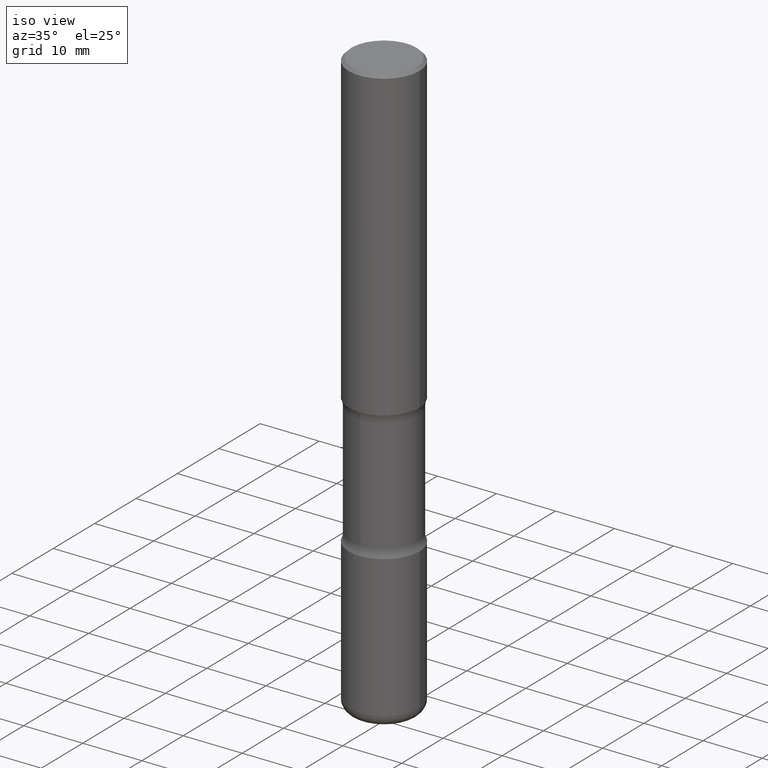
[diagram: clean part render]
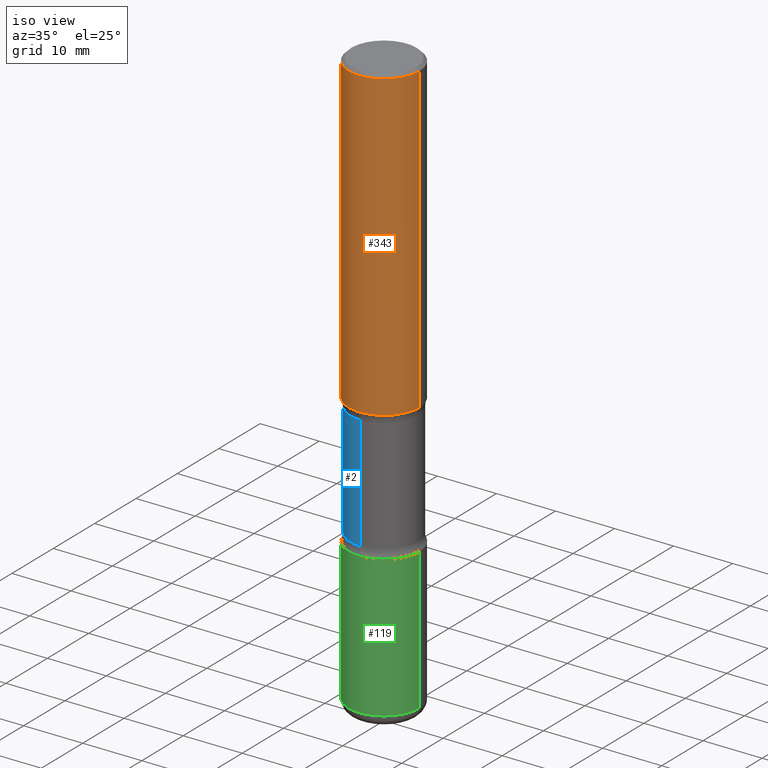
[diagram: same view with three faces highlighted in distinct colors, each labeled with its STEP entity id]
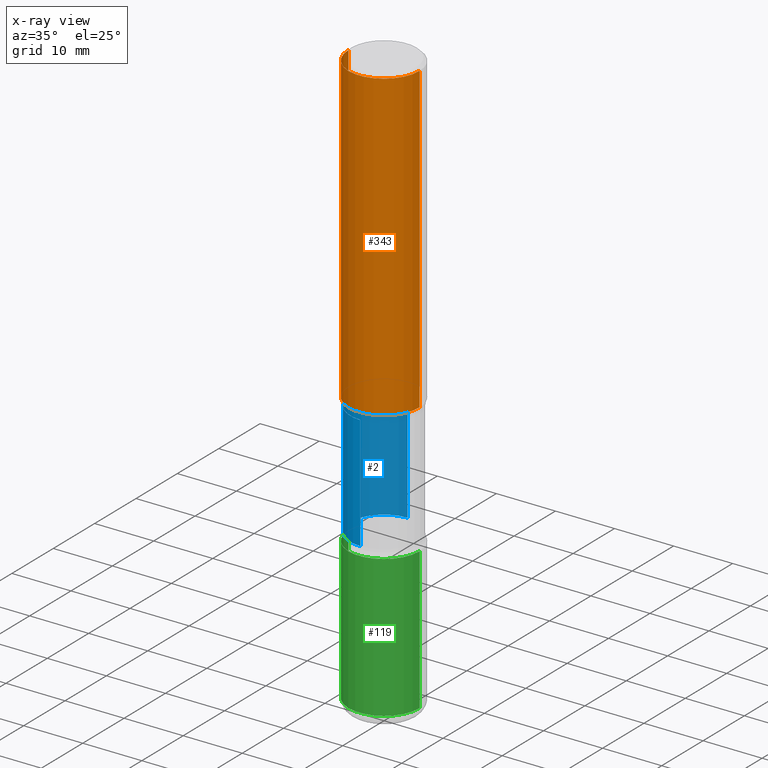
[diagram: x-ray of the same camera — body ghosted, the three highlighted faces saturated]
A machine part, iso view with three faces highlighted in distinct colors.
The next image is the same camera in x-ray (body ghosted, the three faces saturated) — at least one of them is partly hidden behind the body in this view.
Their STEP definitions:

[orange] entity #343 — the highlighted cylindrical surface (partial cylindrical patch) has radius 5.9995 mm, axis along (-0, 0, 1).
#23 = DIRECTION ( 'NONE',  ( 1.000000000000000000, -6.982962677686266711E-15, 4.876176775795936353E-29 ) ) ;
#48 = CARTESIAN_POINT ( 'NONE',  ( -0.2362000000000001598, -1.930493169962915017E-15, -2.047200000000000131 ) ) ;
#61 = EDGE_LOOP ( 'NONE', ( #238, #226, #90, #188 ) ) ;
#87 = CARTESIAN_POINT ( 'NONE',  ( -0.2361999999999999933, 1.678301941865356591E-15, -1.161852468318208757E-29 ) ) ;
#90 = ORIENTED_EDGE ( 'NONE', *, *, #451, .T. ) ;
#92 = EDGE_CURVE ( 'NONE', #491, #437, #287, .T. ) ;
#103 = EDGE_CURVE ( 'NONE', #491, #412, #474, .T. ) ;
#118 = CARTESIAN_POINT ( 'NONE',  ( -0.2361999999999998823, 1.579546157692632438E-15, -0.02000000000000006981 ) ) ;
#121 = CYLINDRICAL_SURFACE ( 'NONE', #436, 0.2361999999999999933 ) ;
#157 = CARTESIAN_POINT ( 'NONE',  ( 0.000000000000000000, 0.000000000000000000, 0.000000000000000000 ) ) ;
#188 = ORIENTED_EDGE ( 'NONE', *, *, #446, .F. ) ;
#202 = DIRECTION ( 'NONE',  ( -2.445468806185136597E-29, 3.491481338843145583E-15, 1.000000000000000000 ) ) ;
#206 = VECTOR ( 'NONE', #476, 39.37007874015748143 ) ;
#226 = ORIENTED_EDGE ( 'NONE', *, *, #92, .T. ) ;
#230 = DIRECTION ( 'NONE',  ( 1.000000000000000000, -6.982962677686267499E-15, 0.000000000000000000 ) ) ;
#232 = DIRECTION ( 'NONE',  ( -2.445468806185136597E-29, 3.491481338843145583E-15, 1.000000000000000000 ) ) ;
#238 = ORIENTED_EDGE ( 'NONE', *, *, #103, .F. ) ;
#277 = VECTOR ( 'NONE', #363, 39.37007874015748143 ) ;
#287 = CIRCLE ( 'NONE', #556, 0.2362000000000001321 ) ;
#292 = DIRECTION ( 'NONE',  ( 1.000000000000000000, -6.982962677686269077E-15, 0.000000000000000000 ) ) ;
#305 = CIRCLE ( 'NONE', #532, 0.2361999999999998823 ) ;
#341 = CARTESIAN_POINT ( 'NONE',  ( 5.006363740022212241E-29, -7.147760596879688202E-15, -2.047200000000000131 ) ) ;
#343 = ADVANCED_FACE ( 'NONE', ( #417 ), #121, .T. ) ;
#363 = DIRECTION ( 'NONE',  ( -2.445468806185136877E-29, 3.491481338843145188E-15, 1.000000000000000000 ) ) ;
#366 = CARTESIAN_POINT ( 'NONE',  ( 0.2361999999999999933, -1.649375784469496131E-15, 1.151752954443000088E-29 ) ) ;
#371 = VERTEX_POINT ( 'NONE', #392 ) ;
#392 = CARTESIAN_POINT ( 'NONE',  ( 0.2361999999999998823, -1.690279253850498179E-15, -0.02000000000000006981 ) ) ;
#412 = VERTEX_POINT ( 'NONE', #118 ) ;
#417 = FACE_OUTER_BOUND ( 'NONE', #61, .T. ) ;
#419 = CARTESIAN_POINT ( 'NONE',  ( 0.2362000000000001321, -8.797136381349186305E-15, -2.047200000000000131 ) ) ;
#422 = CARTESIAN_POINT ( 'NONE',  ( 4.890937612370289799E-31, -6.982962677686315028E-17, -0.02000000000000006981 ) ) ;
#425 = DIRECTION ( 'NONE',  ( -2.445468806185136597E-29, 3.491481338843145583E-15, 1.000000000000000000 ) ) ;
#436 = AXIS2_PLACEMENT_3D ( 'NONE', #157, #202, #23 ) ;
#437 = VERTEX_POINT ( 'NONE', #419 ) ;
#446 = EDGE_CURVE ( 'NONE', #412, #371, #305, .T. ) ;
#451 = EDGE_CURVE ( 'NONE', #437, #371, #490, .T. ) ;
#474 = LINE ( 'NONE', #87, #206 ) ;
#476 = DIRECTION ( 'NONE',  ( -2.445468806185136877E-29, 3.491481338843145188E-15, 1.000000000000000000 ) ) ;
#490 = LINE ( 'NONE', #366, #277 ) ;
#491 = VERTEX_POINT ( 'NONE', #48 ) ;
#532 = AXIS2_PLACEMENT_3D ( 'NONE', #422, #232, #230 ) ;
#556 = AXIS2_PLACEMENT_3D ( 'NONE', #341, #425, #292 ) ;

[blue] entity #2 — the highlighted cylindrical surface (partial cylindrical patch) has radius 5.6998 mm, axis along (0, -0, -1).
#2 = ADVANCED_FACE ( 'NONE', ( #123 ), #250, .T. ) ;
#4 = DIRECTION ( 'NONE',  ( 6.982962677686265922E-15, 1.000000000000000000, -3.652203200085913934E-15 ) ) ;
#18 = ORIENTED_EDGE ( 'NONE', *, *, #261, .T. ) ;
#25 = DIRECTION ( 'NONE',  ( 2.525985086076564115E-29, -3.376177443336566513E-15, -1.000000000000000000 ) ) ;
#47 = EDGE_LOOP ( 'NONE', ( #359, #18, #256, #456 ) ) ;
#60 = DIRECTION ( 'NONE',  ( 2.525985086076564115E-29, -3.376177443336566513E-15, -1.000000000000000000 ) ) ;
#65 = CIRCLE ( 'NONE', #134, 0.2243999999999999606 ) ;
#75 = EDGE_CURVE ( 'NONE', #322, #358, #553, .T. ) ;
#102 = LINE ( 'NONE', #449, #403 ) ;
#123 = FACE_OUTER_BOUND ( 'NONE', #47, .T. ) ;
#124 = CARTESIAN_POINT ( 'NONE',  ( 5.070539682259229331E-29, -7.426630284172150130E-15, -2.100216601173595432 ) ) ;
#134 = AXIS2_PLACEMENT_3D ( 'NONE', #405, #407, #525 ) ;
#152 = AXIS2_PLACEMENT_3D ( 'NONE', #124, #60, #4 ) ;
#172 = DIRECTION ( 'NONE',  ( 6.982962677686265922E-15, 1.000000000000000000, -2.434802133390609815E-15 ) ) ;
#174 = CARTESIAN_POINT ( 'NONE',  ( -1.539495750699834052E-15, -0.2244000000000135608, -3.936999999999999389 ) ) ;
#176 = CIRCLE ( 'NONE', #152, 0.2243999999999999606 ) ;
#179 = CARTESIAN_POINT ( 'NONE',  ( -1.579972688886713168E-15, -0.2244000000000099804, -2.860383398826404466 ) ) ;
#200 = CARTESIAN_POINT ( 'NONE',  ( 1.566976824872867821E-15, 0.2243999999999899686, -2.860383398826405799 ) ) ;
#250 = CYLINDRICAL_SURFACE ( 'NONE', #324, 0.2243999999999999329 ) ;
#256 = ORIENTED_EDGE ( 'NONE', *, *, #529, .T. ) ;
#261 = EDGE_CURVE ( 'NONE', #322, #308, #176, .T. ) ;
#291 = CARTESIAN_POINT ( 'NONE',  ( 9.710227154047748282E-29, -1.362793696358492956E-14, -3.937000000000000277 ) ) ;
#308 = VERTEX_POINT ( 'NONE', #443 ) ;
#313 = VERTEX_POINT ( 'NONE', #200 ) ;
#322 = VERTEX_POINT ( 'NONE', #329 ) ;
#324 = AXIS2_PLACEMENT_3D ( 'NONE', #291, #25, #172 ) ;
#329 = CARTESIAN_POINT ( 'NONE',  ( -1.579972688886734072E-15, -0.2244000000000073713, -2.100216601173594544 ) ) ;
#358 = VERTEX_POINT ( 'NONE', #179 ) ;
#359 = ORIENTED_EDGE ( 'NONE', *, *, #75, .F. ) ;
#403 = VECTOR ( 'NONE', #523, 39.37007874015748143 ) ;
#405 = CARTESIAN_POINT ( 'NONE',  ( 6.990709676060807691E-29, -9.993088279580958225E-15, -2.860383398826405354 ) ) ;
#407 = DIRECTION ( 'NONE',  ( 2.525985086076564115E-29, -3.376177443336566513E-15, -1.000000000000000000 ) ) ;
#443 = CARTESIAN_POINT ( 'NONE',  ( 1.566976824872848494E-15, 0.2243999999999925499, -2.100216601173596320 ) ) ;
#449 = CARTESIAN_POINT ( 'NONE',  ( 1.566976824872894642E-15, 0.2243999999999863049, -3.937000000000000721 ) ) ;
#456 = ORIENTED_EDGE ( 'NONE', *, *, #477, .F. ) ;
#477 = EDGE_CURVE ( 'NONE', #358, #313, #65, .T. ) ;
#507 = DIRECTION ( 'NONE',  ( 2.525985086076564115E-29, -3.376177443336566513E-15, -1.000000000000000000 ) ) ;
#523 = DIRECTION ( 'NONE',  ( 2.525985086076564115E-29, -3.376177443336566513E-15, -1.000000000000000000 ) ) ;
#525 = DIRECTION ( 'NONE',  ( 6.982962677686265922E-15, 1.000000000000000000, -2.434802133390609421E-15 ) ) ;
#529 = EDGE_CURVE ( 'NONE', #308, #313, #102, .T. ) ;
#531 = VECTOR ( 'NONE', #507, 39.37007874015748143 ) ;
#553 = LINE ( 'NONE', #174, #531 ) ;

[green] entity #119 — the highlighted cylindrical surface (partial cylindrical patch) has radius 5.9995 mm, axis along (-0, 0, 1).
#8 = AXIS2_PLACEMENT_3D ( 'NONE', #423, #544, #335 ) ;
#12 = CARTESIAN_POINT ( 'NONE',  ( 7.124628819939777829E-29, -1.017208173258562247E-14, -2.913400000000000212 ) ) ;
#37 = CYLINDRICAL_SURFACE ( 'NONE', #8, 0.2362000000000001598 ) ;
#41 = AXIS2_PLACEMENT_3D ( 'NONE', #12, #255, #388 ) ;
#71 = EDGE_LOOP ( 'NONE', ( #501, #74, #520, #543 ) ) ;
#74 = ORIENTED_EDGE ( 'NONE', *, *, #349, .T. ) ;
#82 = CARTESIAN_POINT ( 'NONE',  ( 0.2362000000000003264, -1.512055823412800345E-14, -3.858299999999998509 ) ) ;
#119 = ADVANCED_FACE ( 'NONE', ( #421 ), #37, .T. ) ;
#120 = VERTEX_POINT ( 'NONE', #503 ) ;
#125 = CIRCLE ( 'NONE', #41, 0.2362000000000001321 ) ;
#165 = CARTESIAN_POINT ( 'NONE',  ( 9.435352294904109900E-29, -1.347118244965850534E-14, -3.858299999999998509 ) ) ;
#169 = DIRECTION ( 'NONE',  ( -2.445468806185136597E-29, 3.491481338843145583E-15, 1.000000000000000000 ) ) ;
#178 = EDGE_CURVE ( 'NONE', #406, #120, #264, .T. ) ;
#190 = DIRECTION ( 'NONE',  ( -2.445468806185136877E-29, 3.491481338843145188E-15, 1.000000000000000000 ) ) ;
#198 = CIRCLE ( 'NONE', #495, 0.2362000000000002153 ) ;
#225 = CARTESIAN_POINT ( 'NONE',  ( -0.2362000000000001598, 1.678301941865357775E-15, -1.161852468318209598E-29 ) ) ;
#246 = EDGE_CURVE ( 'NONE', #120, #458, #125, .T. ) ;
#255 = DIRECTION ( 'NONE',  ( -2.445468806185136597E-29, 3.491481338843145583E-15, 1.000000000000000000 ) ) ;
#260 = LINE ( 'NONE', #442, #454 ) ;
#264 = LINE ( 'NONE', #225, #389 ) ;
#332 = DIRECTION ( 'NONE',  ( 1.000000000000000000, -6.982962677686266711E-15, 0.000000000000000000 ) ) ;
#335 = DIRECTION ( 'NONE',  ( 1.000000000000000000, -6.982962677686266711E-15, 4.876176775795936353E-29 ) ) ;
#349 = EDGE_CURVE ( 'NONE', #406, #350, #198, .T. ) ;
#350 = VERTEX_POINT ( 'NONE', #82 ) ;
#388 = DIRECTION ( 'NONE',  ( 1.000000000000000000, -6.982962677686269077E-15, 0.000000000000000000 ) ) ;
#389 = VECTOR ( 'NONE', #519, 39.37007874015748143 ) ;
#406 = VERTEX_POINT ( 'NONE', #457 ) ;
#421 = FACE_OUTER_BOUND ( 'NONE', #71, .T. ) ;
#423 = CARTESIAN_POINT ( 'NONE',  ( 0.000000000000000000, 0.000000000000000000, 0.000000000000000000 ) ) ;
#442 = CARTESIAN_POINT ( 'NONE',  ( 0.2362000000000001598, -1.649375784469497314E-15, 1.151752954443000929E-29 ) ) ;
#454 = VECTOR ( 'NONE', #190, 39.37007874015748143 ) ;
#457 = CARTESIAN_POINT ( 'NONE',  ( -0.2362000000000003264, -1.179288050779314737E-14, -3.858299999999998509 ) ) ;
#458 = VERTEX_POINT ( 'NONE', #533 ) ;
#486 = EDGE_CURVE ( 'NONE', #350, #458, #260, .T. ) ;
#495 = AXIS2_PLACEMENT_3D ( 'NONE', #165, #169, #332 ) ;
#501 = ORIENTED_EDGE ( 'NONE', *, *, #178, .F. ) ;
#503 = CARTESIAN_POINT ( 'NONE',  ( -0.2362000000000001321, -1.014333014925670672E-14, -2.913400000000000212 ) ) ;
#519 = DIRECTION ( 'NONE',  ( -2.445468806185136877E-29, 3.491481338843145188E-15, 1.000000000000000000 ) ) ;
#520 = ORIENTED_EDGE ( 'NONE', *, *, #486, .T. ) ;
#533 = CARTESIAN_POINT ( 'NONE',  ( 0.2362000000000001321, -1.182145751705511899E-14, -2.913400000000000212 ) ) ;
#543 = ORIENTED_EDGE ( 'NONE', *, *, #246, .F. ) ;
#544 = DIRECTION ( 'NONE',  ( -2.445468806185136597E-29, 3.491481338843145583E-15, 1.000000000000000000 ) ) ;